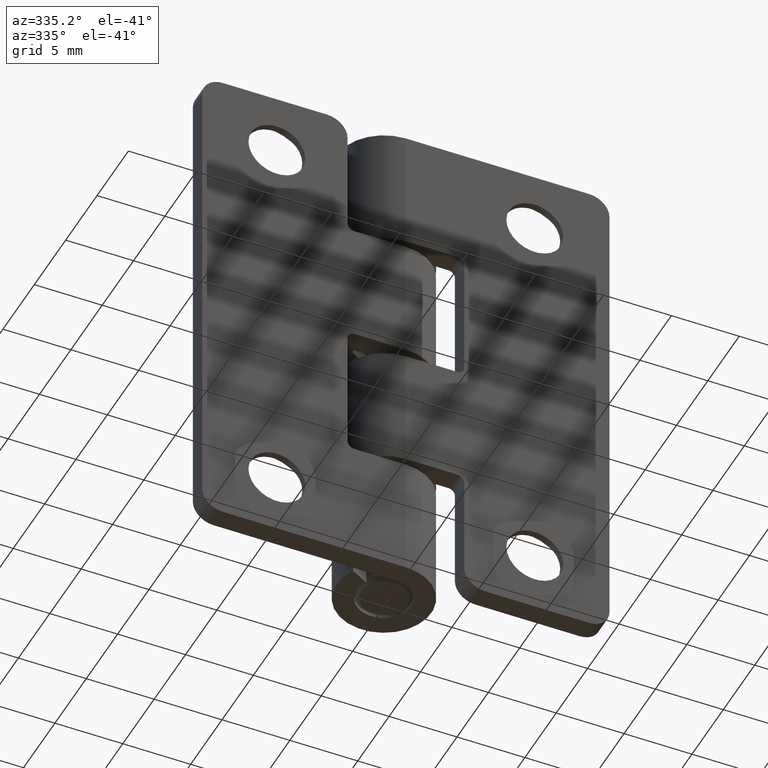
[diagram: clean part render]
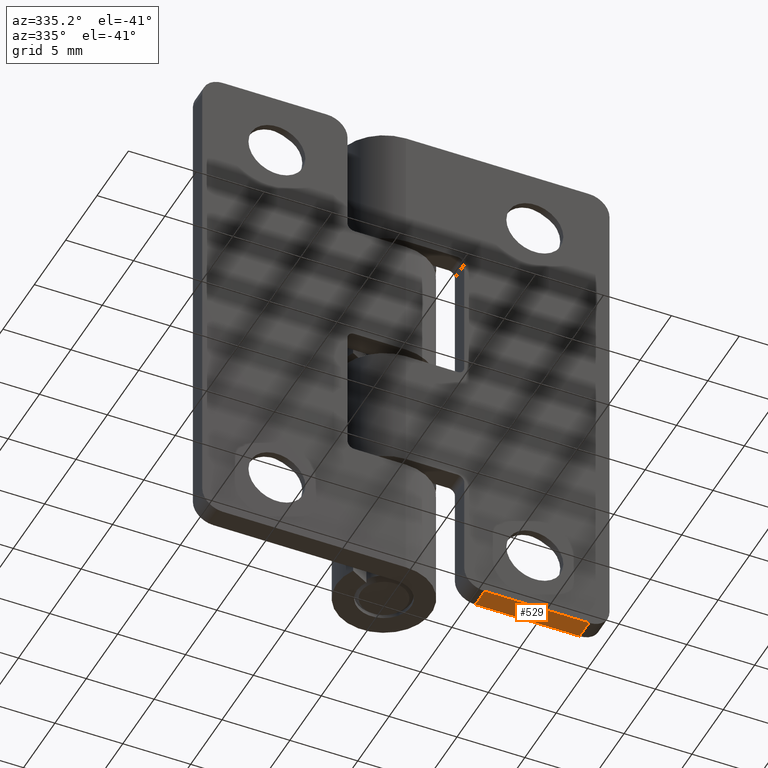
[diagram: same view with one face highlighted and labeled with its STEP entity id]
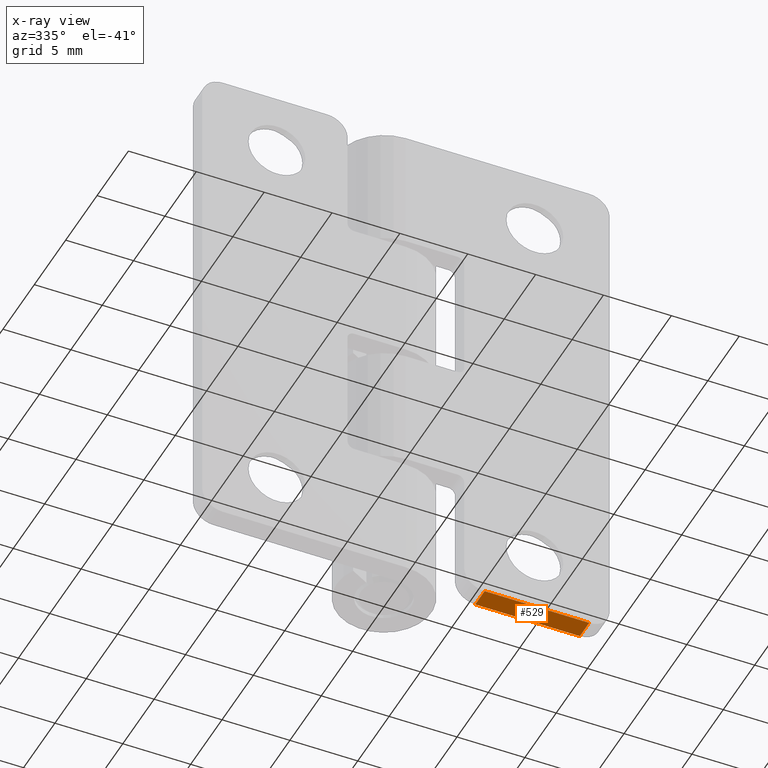
[diagram: x-ray of the same camera — body ghosted, the highlighted face saturated]
A machine part, auxiliary view. The second image highlights one B-rep face of the part: STEP entity #529.
The next image is the same camera in x-ray: the body ghosted, the highlighted face saturated — about 0% of this face is hidden behind the body in this view.
In plain terms, the highlighted planar face has unit normal (0, 0, 1).
Its self-contained STEP definition (entity closure, byte-faithful):
#55=PLANE('',#575);
#73=FACE_OUTER_BOUND('',#104,.T.);
#104=EDGE_LOOP('',(#401,#402,#403,#404));
#154=LINE('',#854,#194);
#155=LINE('',#858,#195);
#156=LINE('',#860,#196);
#157=LINE('',#861,#197);
#194=VECTOR('',#675,1.5);
#195=VECTOR('',#680,7.69999999999999);
#196=VECTOR('',#681,1.5);
#197=VECTOR('',#682,7.69999999999999);
#271=VERTEX_POINT('',#851);
#272=VERTEX_POINT('',#853);
#273=VERTEX_POINT('',#857);
#274=VERTEX_POINT('',#859);
#325=EDGE_CURVE('',#271,#272,#154,.T.);
#327=EDGE_CURVE('',#271,#273,#155,.T.);
#328=EDGE_CURVE('',#274,#273,#156,.T.);
#329=EDGE_CURVE('',#274,#272,#157,.T.);
#401=ORIENTED_EDGE('',*,*,#325,.F.);
#402=ORIENTED_EDGE('',*,*,#327,.T.);
#403=ORIENTED_EDGE('',*,*,#328,.F.);
#404=ORIENTED_EDGE('',*,*,#329,.T.);
#529=ADVANCED_FACE('',(#73),#55,.F.);
#575=AXIS2_PLACEMENT_3D('',#856,#678,#679);
#675=DIRECTION('',(1.05735526154777E-16,-1.,0.));
#678=DIRECTION('center_axis',(0.,0.,1.));
#679=DIRECTION('ref_axis',(1.,0.,0.));
#680=DIRECTION('',(1.,2.40548322002117E-16,0.));
#681=DIRECTION('',(0.,1.,0.));
#682=DIRECTION('',(-1.,-1.48029736616688E-16,0.));
#851=CARTESIAN_POINT('',(5.80000000000001,-2.,-19.));
#853=CARTESIAN_POINT('',(5.80000000000001,-3.5,-19.));
#854=CARTESIAN_POINT('',(5.80000000000001,-1.75,-19.));
#856=CARTESIAN_POINT('Origin',(5.75,0.,-19.));
#857=CARTESIAN_POINT('',(13.5,-2.,-19.));
#858=CARTESIAN_POINT('',(15.,-2.,-19.));
#859=CARTESIAN_POINT('',(13.5,-3.5,-19.));
#860=CARTESIAN_POINT('',(13.5,-1.75,-19.));
#861=CARTESIAN_POINT('',(0.,-3.5,-19.));